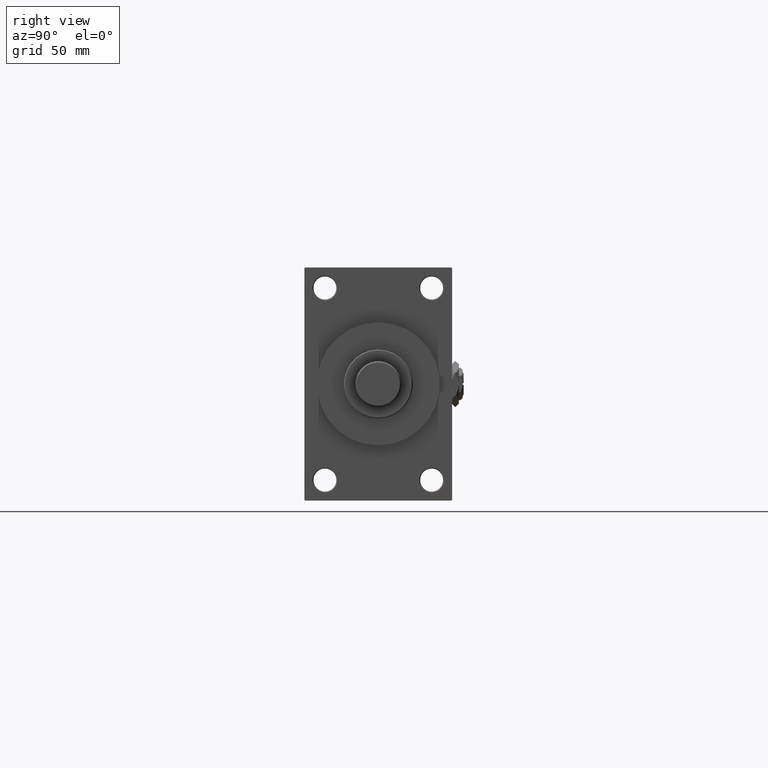
[diagram: clean part render]
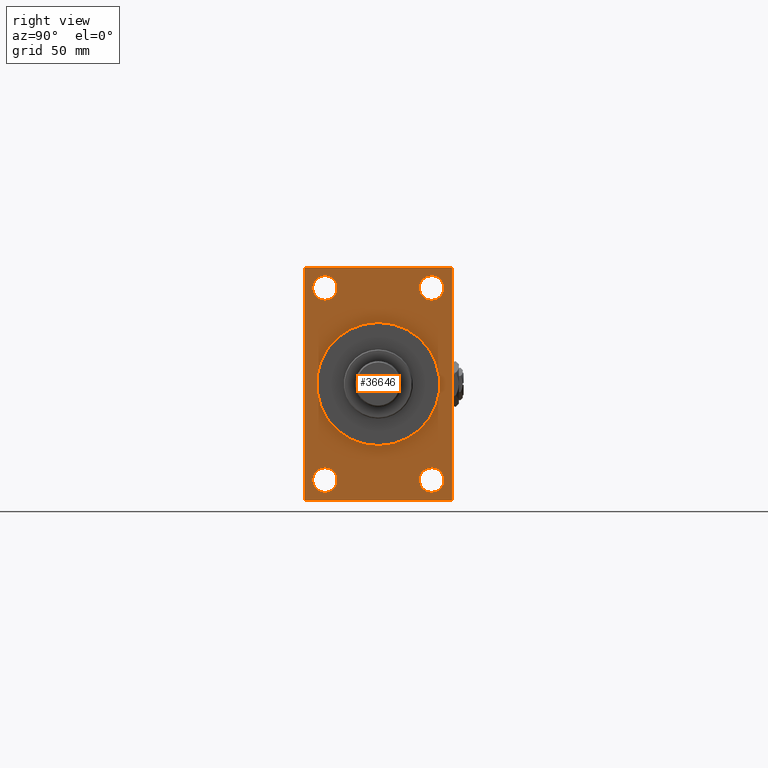
[diagram: same view with one face highlighted and labeled with its STEP entity id]
A machine part, right view. The second image highlights one B-rep face of the part: STEP entity #36646.
In plain terms, the highlighted planar face has unit normal (-1, 0, 0).
Its self-contained STEP definition (entity closure, byte-faithful):
#210 = AXIS2_PLACEMENT_3D ( 'NONE', #10964, #26579, #34858 ) ;
#940 = CIRCLE ( 'NONE', #21049, 7.500000000000047962 ) ;
#1124 = ORIENTED_EDGE ( 'NONE', *, *, #26029, .T. ) ;
#1161 = AXIS2_PLACEMENT_3D ( 'NONE', #13343, #43314, #4827 ) ;
#1168 = AXIS2_PLACEMENT_3D ( 'NONE', #30476, #19122, #3303 ) ;
#1430 = CARTESIAN_POINT ( 'NONE',  ( 319.9999999999999432, 32.50000000000000711, 58.50000000000000711 ) ) ;
#1907 = CARTESIAN_POINT ( 'NONE',  ( 319.9999999999999432, 0.000000000000000000, 0.000000000000000000 ) ) ;
#1976 = DIRECTION ( 'NONE',  ( 0.000000000000000000, -4.886545002751570165E-17, -1.000000000000000000 ) ) ;
#2528 = CARTESIAN_POINT ( 'NONE',  ( 319.9999999999999432, 0.000000000000000000, 37.50000000000000711 ) ) ;
#2535 = EDGE_LOOP ( 'NONE', ( #35786, #14122 ) ) ;
#2906 = EDGE_CURVE ( 'NONE', #11340, #36359, #46107, .T. ) ;
#2976 = CARTESIAN_POINT ( 'NONE',  ( 319.9999999999999432, 45.00000000000002132, 71.00000000000000000 ) ) ;
#3134 = CARTESIAN_POINT ( 'NONE',  ( 319.9999999999999432, -44.99999999999997158, 70.49999999999998579 ) ) ;
#3187 = CARTESIAN_POINT ( 'NONE',  ( 319.9999999999999432, 44.49999999999996447, 71.00000000000000000 ) ) ;
#3235 = VERTEX_POINT ( 'NONE', #14847 ) ;
#3303 = DIRECTION ( 'NONE',  ( 0.000000000000000000, 0.000000000000000000, 1.000000000000000000 ) ) ;
#3453 = CARTESIAN_POINT ( 'NONE',  ( 319.9999999999999432, -44.99999999999997158, 70.99999999999998579 ) ) ;
#3605 = DIRECTION ( 'NONE',  ( 0.000000000000000000, -0.7071067811865867636, 0.7071067811865081598 ) ) ;
#3706 = AXIS2_PLACEMENT_3D ( 'NONE', #18827, #34198, #49546 ) ;
#4095 = EDGE_LOOP ( 'NONE', ( #42626, #11864 ) ) ;
#4774 = ORIENTED_EDGE ( 'NONE', *, *, #2906, .T. ) ;
#4827 = DIRECTION ( 'NONE',  ( 0.000000000000000000, 0.000000000000000000, -1.000000000000000000 ) ) ;
#5018 = CARTESIAN_POINT ( 'NONE',  ( 319.9999999999999432, 32.50000000000000711, -58.50000000000000000 ) ) ;
#5117 = CIRCLE ( 'NONE', #10715, 7.500000000000055067 ) ;
#5999 = AXIS2_PLACEMENT_3D ( 'NONE', #40726, #17794, #33665 ) ;
#6087 = VERTEX_POINT ( 'NONE', #42832 ) ;
#6185 = CIRCLE ( 'NONE', #47170, 37.50000000000000711 ) ;
#6742 = CARTESIAN_POINT ( 'NONE',  ( 319.9999999999999432, 45.00000000000002132, 70.50000000000000000 ) ) ;
#6988 = LINE ( 'NONE', #26361, #22754 ) ;
#7133 = ORIENTED_EDGE ( 'NONE', *, *, #47566, .T. ) ;
#7142 = ORIENTED_EDGE ( 'NONE', *, *, #21041, .F. ) ;
#7567 = VECTOR ( 'NONE', #1976, 1000.000000000000000 ) ;
#7863 = CARTESIAN_POINT ( 'NONE',  ( 319.9999999999999432, 44.49999999999996447, 71.00000000000000000 ) ) ;
#8108 = EDGE_LOOP ( 'NONE', ( #7133, #49386 ) ) ;
#8367 = FACE_BOUND ( 'NONE', #2535, .T. ) ;
#8626 = FACE_BOUND ( 'NONE', #8108, .T. ) ;
#8668 = EDGE_CURVE ( 'NONE', #22300, #32801, #18225, .T. ) ;
#8769 = ORIENTED_EDGE ( 'NONE', *, *, #8668, .F. ) ;
#8944 = DIRECTION ( 'NONE',  ( 1.000000000000000000, 0.000000000000000000, 0.000000000000000000 ) ) ;
#9028 = CARTESIAN_POINT ( 'NONE',  ( 319.9999999999999432, -32.50000000000000000, 66.00000000000005684 ) ) ;
#9474 = CARTESIAN_POINT ( 'NONE',  ( 319.9999999999999432, 32.50000000000000711, 50.99999999999996447 ) ) ;
#9894 = ORIENTED_EDGE ( 'NONE', *, *, #49206, .T. ) ;
#9967 = CIRCLE ( 'NONE', #1161, 37.50000000000000711 ) ;
#10191 = ORIENTED_EDGE ( 'NONE', *, *, #37962, .T. ) ;
#10246 = DIRECTION ( 'NONE',  ( -0.000000000000000000, 0.7071067811865376918, 0.7071067811865574537 ) ) ;
#10715 = AXIS2_PLACEMENT_3D ( 'NONE', #27947, #20355, #35712 ) ;
#10833 = VECTOR ( 'NONE', #37104, 1000.000000000000000 ) ;
#10964 = CARTESIAN_POINT ( 'NONE',  ( 319.9999999999999432, 32.50000000000000711, 58.50000000000000711 ) ) ;
#10976 = VECTOR ( 'NONE', #25017, 1000.000000000000114 ) ;
#11219 = EDGE_CURVE ( 'NONE', #46481, #32219, #23812, .T. ) ;
#11340 = VERTEX_POINT ( 'NONE', #6742 ) ;
#11658 = VECTOR ( 'NONE', #44448, 1000.000000000000000 ) ;
#11864 = ORIENTED_EDGE ( 'NONE', *, *, #17660, .T. ) ;
#11971 = AXIS2_PLACEMENT_3D ( 'NONE', #19430, #23726, #34310 ) ;
#12014 = VERTEX_POINT ( 'NONE', #2528 ) ;
#12434 = EDGE_CURVE ( 'NONE', #35718, #32801, #47187, .T. ) ;
#12505 = DIRECTION ( 'NONE',  ( -1.000000000000000000, 0.000000000000000000, -0.000000000000000000 ) ) ;
#13343 = CARTESIAN_POINT ( 'NONE',  ( 319.9999999999999432, 0.000000000000000000, 0.000000000000000000 ) ) ;
#13609 = ORIENTED_EDGE ( 'NONE', *, *, #20410, .T. ) ;
#14122 = ORIENTED_EDGE ( 'NONE', *, *, #27231, .F. ) ;
#14274 = LINE ( 'NONE', #2976, #7567 ) ;
#14847 = CARTESIAN_POINT ( 'NONE',  ( 319.9999999999999432, -32.50000000000000000, -66.00000000000004263 ) ) ;
#15619 = EDGE_CURVE ( 'NONE', #39794, #34460, #940, .T. ) ;
#16502 = ORIENTED_EDGE ( 'NONE', *, *, #19560, .T. ) ;
#16734 = CARTESIAN_POINT ( 'NONE',  ( 319.9999999999999432, -32.50000000000000000, 50.99999999999996447 ) ) ;
#16944 = VERTEX_POINT ( 'NONE', #37084 ) ;
#17236 = CIRCLE ( 'NONE', #1168, 7.500000000000062172 ) ;
#17660 = EDGE_CURVE ( 'NONE', #33069, #23209, #37165, .T. ) ;
#17672 = VECTOR ( 'NONE', #46470, 1000.000000000000000 ) ;
#17794 = DIRECTION ( 'NONE',  ( -1.000000000000000000, 0.000000000000000000, -0.000000000000000000 ) ) ;
#18012 = LINE ( 'NONE', #44207, #11658 ) ;
#18225 = LINE ( 'NONE', #21525, #10833 ) ;
#18529 = DIRECTION ( 'NONE',  ( 0.000000000000000000, -1.000000000000000000, -1.541976423090495387E-16 ) ) ;
#18827 = CARTESIAN_POINT ( 'NONE',  ( 319.9999999999999432, -32.50000000000000000, 58.50000000000000711 ) ) ;
#18938 = PLANE ( 'NONE',  #11971 ) ;
#19122 = DIRECTION ( 'NONE',  ( -1.000000000000000000, 0.000000000000000000, -0.000000000000000000 ) ) ;
#19430 = CARTESIAN_POINT ( 'NONE',  ( 319.9999999999999432, 0.000000000000000000, 0.000000000000000000 ) ) ;
#19560 = EDGE_CURVE ( 'NONE', #16944, #3235, #5117, .T. ) ;
#19773 = VECTOR ( 'NONE', #10246, 999.9999999999998863 ) ;
#20350 = DIRECTION ( 'NONE',  ( -1.000000000000000000, 0.000000000000000000, -0.000000000000000000 ) ) ;
#20355 = DIRECTION ( 'NONE',  ( -1.000000000000000000, 0.000000000000000000, -0.000000000000000000 ) ) ;
#20410 = EDGE_CURVE ( 'NONE', #36359, #6087, #6988, .T. ) ;
#20724 = EDGE_CURVE ( 'NONE', #12014, #47189, #9967, .T. ) ;
#21041 = EDGE_CURVE ( 'NONE', #11340, #30761, #14274, .T. ) ;
#21049 = AXIS2_PLACEMENT_3D ( 'NONE', #43695, #12505, #27885 ) ;
#21525 = CARTESIAN_POINT ( 'NONE',  ( 319.9999999999999432, 45.00000000000001421, -70.99999999999998579 ) ) ;
#22207 = EDGE_CURVE ( 'NONE', #3235, #16944, #42111, .T. ) ;
#22300 = VERTEX_POINT ( 'NONE', #49243 ) ;
#22754 = VECTOR ( 'NONE', #18529, 1000.000000000000000 ) ;
#23209 = VERTEX_POINT ( 'NONE', #9474 ) ;
#23726 = DIRECTION ( 'NONE',  ( -1.000000000000000000, 0.000000000000000000, -0.000000000000000000 ) ) ;
#23812 = CIRCLE ( 'NONE', #37467, 7.500000000000062172 ) ;
#24033 = CARTESIAN_POINT ( 'NONE',  ( 319.9999999999999432, -44.49999999999991473, -71.00000000000000000 ) ) ;
#24645 = DIRECTION ( 'NONE',  ( 0.000000000000000000, 0.000000000000000000, 1.000000000000000000 ) ) ;
#24740 = EDGE_LOOP ( 'NONE', ( #28073, #33401 ) ) ;
#24939 = EDGE_CURVE ( 'NONE', #34460, #39794, #27825, .T. ) ;
#25017 = DIRECTION ( 'NONE',  ( 0.000000000000000000, 0.7071067811865965336, -0.7071067811864985009 ) ) ;
#26029 = EDGE_CURVE ( 'NONE', #22300, #30761, #37163, .T. ) ;
#26196 = EDGE_CURVE ( 'NONE', #23209, #33069, #49526, .T. ) ;
#26361 = CARTESIAN_POINT ( 'NONE',  ( 319.9999999999999432, 45.00000000000002132, 71.00000000000000000 ) ) ;
#26579 = DIRECTION ( 'NONE',  ( -1.000000000000000000, 0.000000000000000000, -0.000000000000000000 ) ) ;
#27231 = EDGE_CURVE ( 'NONE', #47189, #12014, #6185, .T. ) ;
#27800 = ORIENTED_EDGE ( 'NONE', *, *, #22207, .T. ) ;
#27825 = CIRCLE ( 'NONE', #3706, 7.500000000000047962 ) ;
#27857 = DIRECTION ( 'NONE',  ( -1.000000000000000000, 0.000000000000000000, -0.000000000000000000 ) ) ;
#27885 = DIRECTION ( 'NONE',  ( 0.000000000000000000, 0.000000000000000000, 1.000000000000000000 ) ) ;
#27947 = CARTESIAN_POINT ( 'NONE',  ( 319.9999999999999432, -32.50000000000000000, -58.49999999999999289 ) ) ;
#28073 = ORIENTED_EDGE ( 'NONE', *, *, #24939, .T. ) ;
#29399 = CARTESIAN_POINT ( 'NONE',  ( 319.9999999999999432, 45.00000000000001421, -70.49999999999997158 ) ) ;
#30476 = CARTESIAN_POINT ( 'NONE',  ( 319.9999999999999432, 32.50000000000000711, -58.50000000000000000 ) ) ;
#30627 = LINE ( 'NONE', #3453, #17672 ) ;
#30761 = VERTEX_POINT ( 'NONE', #40945 ) ;
#32116 = DIRECTION ( 'NONE',  ( 0.000000000000000000, 0.000000000000000000, 1.000000000000000000 ) ) ;
#32219 = VERTEX_POINT ( 'NONE', #34105 ) ;
#32356 = DIRECTION ( 'NONE',  ( 0.000000000000000000, 0.000000000000000000, -1.000000000000000000 ) ) ;
#32712 = CARTESIAN_POINT ( 'NONE',  ( 319.9999999999999432, 32.50000000000000711, 66.00000000000005684 ) ) ;
#32801 = VERTEX_POINT ( 'NONE', #36792 ) ;
#33061 = CARTESIAN_POINT ( 'NONE',  ( 319.9999999999999432, 4.592425496802575156E-15, -37.50000000000000711 ) ) ;
#33069 = VERTEX_POINT ( 'NONE', #32712 ) ;
#33401 = ORIENTED_EDGE ( 'NONE', *, *, #15619, .T. ) ;
#33665 = DIRECTION ( 'NONE',  ( 0.000000000000000000, 0.000000000000000000, 1.000000000000000000 ) ) ;
#34105 = CARTESIAN_POINT ( 'NONE',  ( 319.9999999999999432, 32.50000000000000711, -66.00000000000005684 ) ) ;
#34198 = DIRECTION ( 'NONE',  ( -1.000000000000000000, 0.000000000000000000, -0.000000000000000000 ) ) ;
#34310 = DIRECTION ( 'NONE',  ( -0.000000000000000000, 0.000000000000000000, 1.000000000000000000 ) ) ;
#34460 = VERTEX_POINT ( 'NONE', #16734 ) ;
#34858 = DIRECTION ( 'NONE',  ( 0.000000000000000000, 0.000000000000000000, 1.000000000000000000 ) ) ;
#35306 = FACE_BOUND ( 'NONE', #24740, .T. ) ;
#35712 = DIRECTION ( 'NONE',  ( 0.000000000000000000, 0.000000000000000000, 1.000000000000000000 ) ) ;
#35718 = VERTEX_POINT ( 'NONE', #38056 ) ;
#35786 = ORIENTED_EDGE ( 'NONE', *, *, #20724, .F. ) ;
#36307 = EDGE_LOOP ( 'NONE', ( #27800, #16502 ) ) ;
#36359 = VERTEX_POINT ( 'NONE', #3187 ) ;
#36646 = ADVANCED_FACE ( 'NONE', ( #35306, #43103, #8626, #38814, #8367, #38330 ), #18938, .F. ) ;
#36792 = CARTESIAN_POINT ( 'NONE',  ( 319.9999999999999432, -44.49999999999988631, -71.00000000000000000 ) ) ;
#37084 = CARTESIAN_POINT ( 'NONE',  ( 319.9999999999999432, -32.50000000000000000, -50.99999999999992895 ) ) ;
#37104 = DIRECTION ( 'NONE',  ( 0.000000000000000000, -1.000000000000000000, -1.541976423090495633E-16 ) ) ;
#37163 = LINE ( 'NONE', #29399, #19773 ) ;
#37165 = CIRCLE ( 'NONE', #210, 7.500000000000047962 ) ;
#37467 = AXIS2_PLACEMENT_3D ( 'NONE', #5018, #20350, #24645 ) ;
#37962 = EDGE_CURVE ( 'NONE', #48154, #35718, #30627, .T. ) ;
#38056 = CARTESIAN_POINT ( 'NONE',  ( 319.9999999999999432, -44.99999999999997158, -70.50000000000000000 ) ) ;
#38281 = AXIS2_PLACEMENT_3D ( 'NONE', #1430, #27857, #32116 ) ;
#38330 = FACE_OUTER_BOUND ( 'NONE', #46562, .T. ) ;
#38814 = FACE_BOUND ( 'NONE', #4095, .T. ) ;
#39794 = VERTEX_POINT ( 'NONE', #9028 ) ;
#40726 = CARTESIAN_POINT ( 'NONE',  ( 319.9999999999999432, -32.50000000000000000, -58.49999999999999289 ) ) ;
#40945 = CARTESIAN_POINT ( 'NONE',  ( 319.9999999999999432, 45.00000000000001421, -70.49999999999997158 ) ) ;
#42111 = CIRCLE ( 'NONE', #5999, 7.500000000000055067 ) ;
#42626 = ORIENTED_EDGE ( 'NONE', *, *, #26196, .T. ) ;
#42832 = CARTESIAN_POINT ( 'NONE',  ( 319.9999999999999432, -44.49999999999995026, 70.99999999999998579 ) ) ;
#42877 = ORIENTED_EDGE ( 'NONE', *, *, #12434, .T. ) ;
#43103 = FACE_BOUND ( 'NONE', #36307, .T. ) ;
#43314 = DIRECTION ( 'NONE',  ( 1.000000000000000000, 0.000000000000000000, 0.000000000000000000 ) ) ;
#43695 = CARTESIAN_POINT ( 'NONE',  ( 319.9999999999999432, -32.50000000000000000, 58.50000000000000711 ) ) ;
#44012 = CARTESIAN_POINT ( 'NONE',  ( 319.9999999999999432, 32.50000000000000711, -50.99999999999993605 ) ) ;
#44207 = CARTESIAN_POINT ( 'NONE',  ( 319.9999999999999432, -44.99999999999997158, 70.49999999999998579 ) ) ;
#44448 = DIRECTION ( 'NONE',  ( -0.000000000000000000, -0.7071067811865426878, -0.7071067811865524577 ) ) ;
#46107 = LINE ( 'NONE', #7863, #49353 ) ;
#46470 = DIRECTION ( 'NONE',  ( 0.000000000000000000, 0.000000000000000000, -1.000000000000000000 ) ) ;
#46481 = VERTEX_POINT ( 'NONE', #44012 ) ;
#46562 = EDGE_LOOP ( 'NONE', ( #10191, #42877, #8769, #1124, #7142, #4774, #13609, #9894 ) ) ;
#47170 = AXIS2_PLACEMENT_3D ( 'NONE', #1907, #8944, #32356 ) ;
#47187 = LINE ( 'NONE', #24033, #10976 ) ;
#47189 = VERTEX_POINT ( 'NONE', #33061 ) ;
#47566 = EDGE_CURVE ( 'NONE', #32219, #46481, #17236, .T. ) ;
#48154 = VERTEX_POINT ( 'NONE', #3134 ) ;
#49206 = EDGE_CURVE ( 'NONE', #6087, #48154, #18012, .T. ) ;
#49243 = CARTESIAN_POINT ( 'NONE',  ( 319.9999999999999432, 44.50000000000001421, -70.99999999999998579 ) ) ;
#49353 = VECTOR ( 'NONE', #3605, 1000.000000000000000 ) ;
#49386 = ORIENTED_EDGE ( 'NONE', *, *, #11219, .T. ) ;
#49526 = CIRCLE ( 'NONE', #38281, 7.500000000000047962 ) ;
#49546 = DIRECTION ( 'NONE',  ( 0.000000000000000000, 0.000000000000000000, 1.000000000000000000 ) ) ;